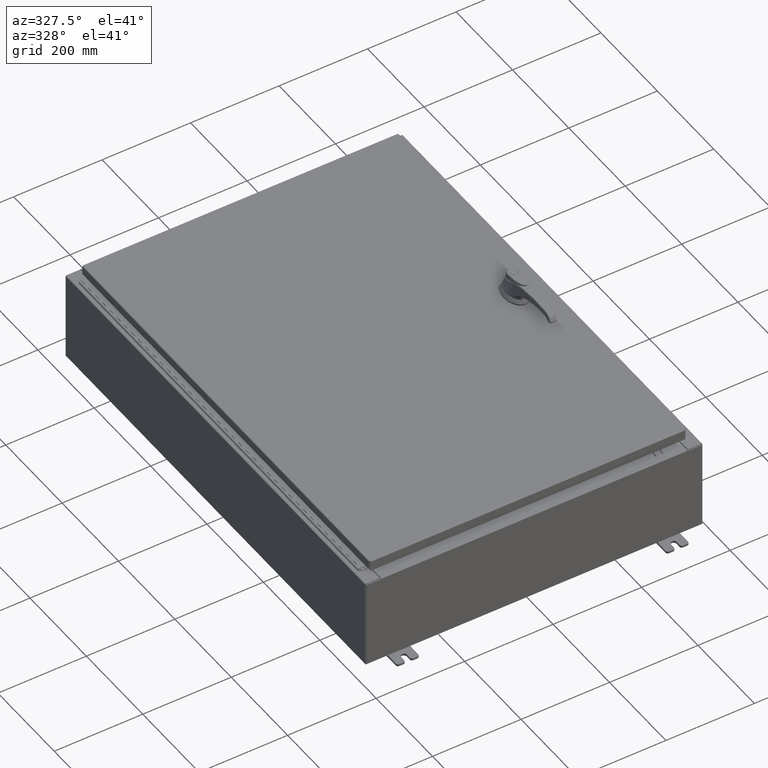
[diagram: clean part render]
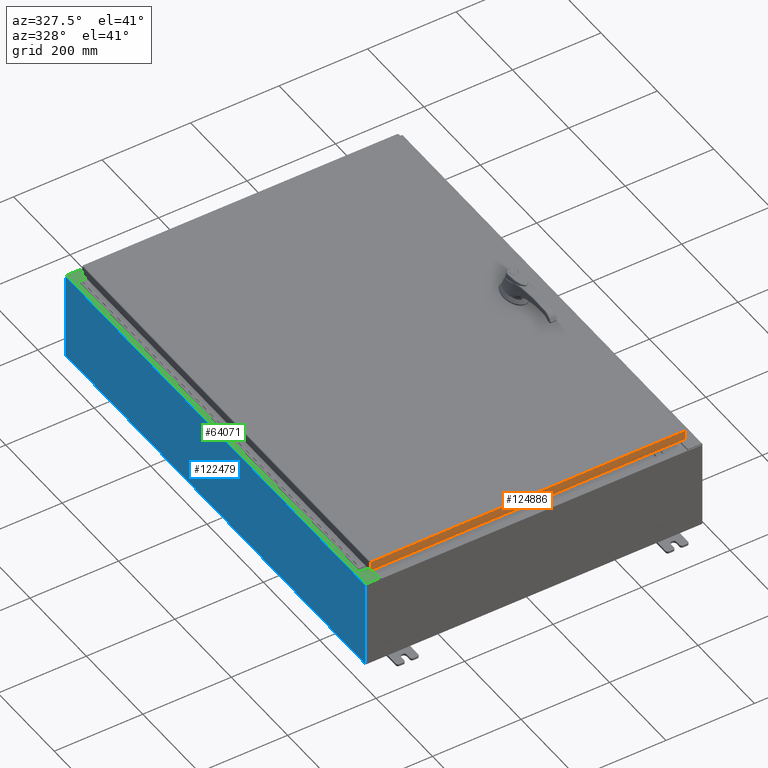
[diagram: same view with three faces highlighted in distinct colors, each labeled with its STEP entity id]
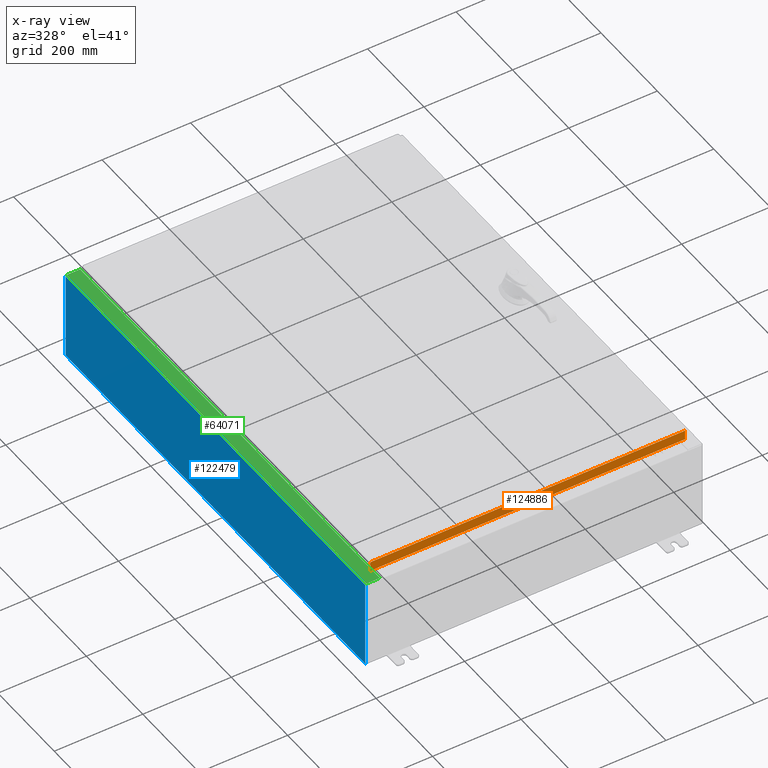
[diagram: x-ray of the same camera — body ghosted, the three highlighted faces saturated]
A machine part, auxiliary view with three faces highlighted in distinct colors.
The next image is the same camera in x-ray (body ghosted, the three faces saturated) — at least one of them is partly hidden behind the body in this view.
Their STEP definitions:

[orange] entity #124886 — the highlighted planar face has unit normal (-0, 1, -0).
#1382 = EDGE_LOOP ( 'NONE', ( #42839, #116784, #117288, #85287 ) ) ;
#2235 = LINE ( 'NONE', #21187, #78443 ) ;
#21187 = CARTESIAN_POINT ( 'NONE',  ( -13.98915786437626500, -20.09400000000000800, 1.020337055859114100E-013 ) ) ;
#28573 = EDGE_CURVE ( 'NONE', #119610, #53768, #33277, .T. ) ;
#30191 = VECTOR ( 'NONE', #128798, 39.37007874015748100 ) ;
#33277 = LINE ( 'NONE', #118860, #30191 ) ;
#34438 = CARTESIAN_POINT ( 'NONE',  ( 1.283692611935426900E-029, -20.09400000000000800, 1.020337055859114100E-013 ) ) ;
#36048 = EDGE_CURVE ( 'NONE', #53768, #95969, #97226, .T. ) ;
#36796 = CARTESIAN_POINT ( 'NONE',  ( -13.98915786437626500, -20.09400000000001200, -0.9376999999999962000 ) ) ;
#42839 = ORIENTED_EDGE ( 'NONE', *, *, #65434, .F. ) ;
#43736 = LINE ( 'NONE', #107799, #93534 ) ;
#44422 = DIRECTION ( 'NONE',  ( 0.0000000000000000000, 5.064839849203732200E-015, 1.000000000000000000 ) ) ;
#47311 = CARTESIAN_POINT ( 'NONE',  ( 13.98915786437627100, -20.09400000000001200, -0.9376999999999997600 ) ) ;
#50501 = DIRECTION ( 'NONE',  ( -1.000000000000000000, -0.0000000000000000000, 1.261330583805775800E-016 ) ) ;
#53517 = PLANE ( 'NONE',  #93148 ) ;
#53768 = VERTEX_POINT ( 'NONE', #47311 ) ;
#54723 = EDGE_CURVE ( 'NONE', #90332, #95969, #2235, .T. ) ;
#65434 = EDGE_CURVE ( 'NONE', #90332, #119610, #43736, .T. ) ;
#70536 = CARTESIAN_POINT ( 'NONE',  ( 14.07800000000000300, -20.09400000000001200, -0.9376999999999997600 ) ) ;
#78443 = VECTOR ( 'NONE', #90725, 39.37007874015748100 ) ;
#85287 = ORIENTED_EDGE ( 'NONE', *, *, #28573, .F. ) ;
#90332 = VERTEX_POINT ( 'NONE', #116921 ) ;
#90725 = DIRECTION ( 'NONE',  ( 0.0000000000000000000, -5.064839849203732200E-015, -1.000000000000000000 ) ) ;
#93148 = AXIS2_PLACEMENT_3D ( 'NONE', #34438, #104022, #44422 ) ;
#93534 = VECTOR ( 'NONE', #117723, 39.37007874015748100 ) ;
#94072 = VECTOR ( 'NONE', #50501, 39.37007874015748100 ) ;
#95969 = VERTEX_POINT ( 'NONE', #36796 ) ;
#97226 = LINE ( 'NONE', #70536, #94072 ) ;
#104022 = DIRECTION ( 'NONE',  ( -6.388437403878901000E-031, 1.000000000000000000, -5.064839849203732200E-015 ) ) ;
#107799 = CARTESIAN_POINT ( 'NONE',  ( 14.07800000000000300, -20.09400000000000800, -0.08769999999999550400 ) ) ;
#111917 = FACE_OUTER_BOUND ( 'NONE', #1382, .T. ) ;
#116784 = ORIENTED_EDGE ( 'NONE', *, *, #54723, .T. ) ;
#116921 = CARTESIAN_POINT ( 'NONE',  ( -13.98915786437626500, -20.09400000000000800, -0.08769999999999550400 ) ) ;
#117288 = ORIENTED_EDGE ( 'NONE', *, *, #36048, .F. ) ;
#117723 = DIRECTION ( 'NONE',  ( 1.000000000000000000, 6.388437403878901800E-031, -3.301709433786010000E-045 ) ) ;
#118266 = CARTESIAN_POINT ( 'NONE',  ( 13.98915786437627400, -20.09400000000000800, -0.08769999999999550400 ) ) ;
#118860 = CARTESIAN_POINT ( 'NONE',  ( 13.98915786437627100, -20.09400000000000800, -0.07469999999999962800 ) ) ;
#119610 = VERTEX_POINT ( 'NONE', #118266 ) ;
#124886 = ADVANCED_FACE ( 'NONE', ( #111917 ), #53517, .F. ) ;
#128798 = DIRECTION ( 'NONE',  ( -0.0000000000000000000, -5.064839849203732200E-015, -1.000000000000000000 ) ) ;

[blue] entity #122479 — the highlighted planar face has unit normal (1, 0, 0).
#1658 = VECTOR ( 'NONE', #14600, 39.37007874015748100 ) ;
#1794 = VERTEX_POINT ( 'NONE', #116780 ) ;
#3663 = EDGE_CURVE ( 'NONE', #75456, #1794, #91618, .T. ) ;
#6051 = DIRECTION ( 'NONE',  ( -0.0000000000000000000, 1.000000000000000000, -0.0000000000000000000 ) ) ;
#7464 = FACE_OUTER_BOUND ( 'NONE', #42356, .T. ) ;
#8203 = ORIENTED_EDGE ( 'NONE', *, *, #120057, .F. ) ;
#14600 = DIRECTION ( 'NONE',  ( -3.584876173029202900E-015, 0.0000000000000000000, 1.000000000000000000 ) ) ;
#21899 = VERTEX_POINT ( 'NONE', #100489 ) ;
#24436 = ORIENTED_EDGE ( 'NONE', *, *, #52814, .T. ) ;
#30195 = DIRECTION ( 'NONE',  ( 0.0000000000000000000, 1.000000000000000000, 0.0000000000000000000 ) ) ;
#34135 = CARTESIAN_POINT ( 'NONE',  ( -14.99999999999999800, 0.0000000000000000000, -5.403395625144962100E-014 ) ) ;
#37339 = LINE ( 'NONE', #125035, #87117 ) ;
#40438 = EDGE_CURVE ( 'NONE', #85388, #75456, #48274, .T. ) ;
#42356 = EDGE_LOOP ( 'NONE', ( #73819, #24436, #8203, #66703 ) ) ;
#44132 = DIRECTION ( 'NONE',  ( 3.584876173029202900E-015, 0.0000000000000000000, -1.000000000000000000 ) ) ;
#44438 = CARTESIAN_POINT ( 'NONE',  ( -15.00000000000002700, -20.92529999999998900, 7.837599999999999200 ) ) ;
#48274 = LINE ( 'NONE', #64083, #1658 ) ;
#52814 = EDGE_CURVE ( 'NONE', #1794, #21899, #70963, .T. ) ;
#54437 = CARTESIAN_POINT ( 'NONE',  ( -15.00000000000002700, -20.92529999999998600, 7.837599999999999200 ) ) ;
#55372 = DIRECTION ( 'NONE',  ( 3.584876173029202900E-015, 0.0000000000000000000, -1.000000000000000000 ) ) ;
#58601 = CARTESIAN_POINT ( 'NONE',  ( -14.99999999999999800, -20.92529999999998600, 0.01299999999999984700 ) ) ;
#64083 = CARTESIAN_POINT ( 'NONE',  ( -14.99999999999999800, -20.92529999999999300, -5.403395625144962100E-014 ) ) ;
#66703 = ORIENTED_EDGE ( 'NONE', *, *, #40438, .T. ) ;
#70963 = LINE ( 'NONE', #114978, #120676 ) ;
#73819 = ORIENTED_EDGE ( 'NONE', *, *, #3663, .T. ) ;
#75456 = VERTEX_POINT ( 'NONE', #54437 ) ;
#85388 = VERTEX_POINT ( 'NONE', #58601 ) ;
#87117 = VECTOR ( 'NONE', #6051, 39.37007874015748100 ) ;
#88030 = AXIS2_PLACEMENT_3D ( 'NONE', #34135, #103727, #44132 ) ;
#91618 = LINE ( 'NONE', #44438, #111794 ) ;
#93727 = PLANE ( 'NONE',  #88030 ) ;
#100489 = CARTESIAN_POINT ( 'NONE',  ( -14.99999999999999800, 20.92530000000000700, 0.01299999999999983600 ) ) ;
#103727 = DIRECTION ( 'NONE',  ( 1.000000000000000000, 0.0000000000000000000, 3.584876173029202900E-015 ) ) ;
#111794 = VECTOR ( 'NONE', #30195, 39.37007874015748100 ) ;
#114978 = CARTESIAN_POINT ( 'NONE',  ( -14.99999999999999800, 20.92530000000000700, -5.403395625144962100E-014 ) ) ;
#116780 = CARTESIAN_POINT ( 'NONE',  ( -15.00000000000002700, 20.92530000000000700, 7.837599999999999200 ) ) ;
#120057 = EDGE_CURVE ( 'NONE', #85388, #21899, #37339, .T. ) ;
#120676 = VECTOR ( 'NONE', #55372, 39.37007874015748100 ) ;
#122479 = ADVANCED_FACE ( 'NONE', ( #7464 ), #93727, .F. ) ;
#125035 = CARTESIAN_POINT ( 'NONE',  ( -14.99999999999999800, 20.92530000000000700, 0.01299999999999984700 ) ) ;

[green] entity #64071 — the highlighted planar face has unit normal (0, 0, -1).
#1828 = VECTOR ( 'NONE', #63168, 39.37007874015748100 ) ;
#1988 = FACE_OUTER_BOUND ( 'NONE', #17120, .T. ) ;
#4632 = LINE ( 'NONE', #53541, #27993 ) ;
#4751 = EDGE_CURVE ( 'NONE', #117487, #17354, #16777, .T. ) ;
#5332 = LINE ( 'NONE', #37284, #84642 ) ;
#5456 = VECTOR ( 'NONE', #92288, 39.37007874015748100 ) ;
#7649 = VECTOR ( 'NONE', #75482, 39.37007874015748100 ) ;
#10365 = CARTESIAN_POINT ( 'NONE',  ( -13.75005000000002700, -19.59374999999998200, 7.925300000000007100 ) ) ;
#11464 = ORIENTED_EDGE ( 'NONE', *, *, #33781, .F. ) ;
#11725 = EDGE_CURVE ( 'NONE', #18247, #89728, #39349, .T. ) ;
#12096 = VECTOR ( 'NONE', #71170, 39.37007874015748100 ) ;
#12140 = ORIENTED_EDGE ( 'NONE', *, *, #104926, .F. ) ;
#12401 = EDGE_CURVE ( 'NONE', #27461, #85206, #48554, .T. ) ;
#15748 = CARTESIAN_POINT ( 'NONE',  ( -13.69970000000002800, 0.0000000000000000000, 7.925300000000008900 ) ) ;
#16425 = CARTESIAN_POINT ( 'NONE',  ( -13.71270000000002800, 19.59375000000000400, 7.925300000000010700 ) ) ;
#16777 = CIRCLE ( 'NONE', #124332, 0.01867499999999949400 ) ;
#17120 = EDGE_LOOP ( 'NONE', ( #104253, #121613, #42568, #23168, #21576, #85484, #12140, #20189, #11464, #50535, #94995, #59803 ) ) ;
#17354 = VERTEX_POINT ( 'NONE', #118934 ) ;
#18247 = VERTEX_POINT ( 'NONE', #64784 ) ;
#19678 = VERTEX_POINT ( 'NONE', #91583 ) ;
#20189 = ORIENTED_EDGE ( 'NONE', *, *, #4751, .F. ) ;
#21576 = ORIENTED_EDGE ( 'NONE', *, *, #41215, .T. ) ;
#22196 = CARTESIAN_POINT ( 'NONE',  ( -13.75005000000002700, 19.59375000000000400, 7.925300000000010700 ) ) ;
#22836 = CARTESIAN_POINT ( 'NONE',  ( -5.679009539018309800E-014, 20.92530000000000700, 7.925300000000105700 ) ) ;
#23168 = ORIENTED_EDGE ( 'NONE', *, *, #59338, .F. ) ;
#23988 = VERTEX_POINT ( 'NONE', #125106 ) ;
#25112 = DIRECTION ( 'NONE',  ( -1.000000000000000000, 0.0000000000000000000, -7.132762385546384700E-015 ) ) ;
#25721 = DIRECTION ( 'NONE',  ( 0.0000000000000000000, 1.000000000000000000, 0.0000000000000000000 ) ) ;
#27461 = VERTEX_POINT ( 'NONE', #53164 ) ;
#27993 = VECTOR ( 'NONE', #63558, 39.37007874015748100 ) ;
#28536 = DIRECTION ( 'NONE',  ( -7.132762385546384700E-015, -0.0000000000000000000, 1.000000000000000000 ) ) ;
#32679 = VECTOR ( 'NONE', #110034, 39.37007874015748100 ) ;
#33781 = EDGE_CURVE ( 'NONE', #68276, #117487, #85581, .T. ) ;
#34990 = LINE ( 'NONE', #122200, #5456 ) ;
#36189 = VECTOR ( 'NONE', #25721, 39.37007874015748100 ) ;
#36853 = DIRECTION ( 'NONE',  ( 0.0000000000000000000, 1.000000000000000000, 0.0000000000000000000 ) ) ;
#37284 = CARTESIAN_POINT ( 'NONE',  ( -13.69970000000002800, 19.63110000000000400, 7.925300000000009800 ) ) ;
#38489 = LINE ( 'NONE', #90753, #12096 ) ;
#38849 = CARTESIAN_POINT ( 'NONE',  ( -13.69970000000002800, 20.92530000000000700, 7.925300000000008900 ) ) ;
#39349 = LINE ( 'NONE', #15748, #36189 ) ;
#40296 = LINE ( 'NONE', #105529, #7649 ) ;
#41215 = EDGE_CURVE ( 'NONE', #52901, #27461, #4632, .T. ) ;
#41629 = CARTESIAN_POINT ( 'NONE',  ( -14.91230000000002700, 20.92530000000000700, 7.925300000000000000 ) ) ;
#42568 = ORIENTED_EDGE ( 'NONE', *, *, #69652, .T. ) ;
#44620 = VERTEX_POINT ( 'NONE', #41629 ) ;
#48554 = LINE ( 'NONE', #125891, #98408 ) ;
#50429 = CARTESIAN_POINT ( 'NONE',  ( -13.71270000000002800, -19.59374999999998200, 7.925300000000010700 ) ) ;
#50535 = ORIENTED_EDGE ( 'NONE', *, *, #112649, .F. ) ;
#52901 = VERTEX_POINT ( 'NONE', #76289 ) ;
#53164 = CARTESIAN_POINT ( 'NONE',  ( -13.69970000000002800, -20.92529999999998600, 7.925300000000008900 ) ) ;
#53541 = CARTESIAN_POINT ( 'NONE',  ( -1.314176917633201200E-013, -20.92530000000003600, 7.925300000000105700 ) ) ;
#53572 = EDGE_CURVE ( 'NONE', #23988, #127533, #100488, .T. ) ;
#56021 = CARTESIAN_POINT ( 'NONE',  ( -13.69970000000002800, -19.63109999999998600, 7.925300000000008900 ) ) ;
#57774 = LINE ( 'NONE', #22836, #1828 ) ;
#59338 = EDGE_CURVE ( 'NONE', #52901, #44620, #38489, .T. ) ;
#59803 = ORIENTED_EDGE ( 'NONE', *, *, #68108, .F. ) ;
#63168 = DIRECTION ( 'NONE',  ( -1.000000000000000000, 0.0000000000000000000, -7.132762385546384700E-015 ) ) ;
#63558 = DIRECTION ( 'NONE',  ( 1.000000000000000000, -3.566381192773192400E-015, 7.132762385546384700E-015 ) ) ;
#64071 = ADVANCED_FACE ( 'NONE', ( #1988 ), #124100, .F. ) ;
#64784 = CARTESIAN_POINT ( 'NONE',  ( -13.69970000000002800, 19.63110000000000400, 7.925300000000008900 ) ) ;
#68108 = EDGE_CURVE ( 'NONE', #19678, #23988, #94941, .T. ) ;
#68276 = VERTEX_POINT ( 'NONE', #109797 ) ;
#69652 = EDGE_CURVE ( 'NONE', #89728, #44620, #57774, .T. ) ;
#70859 = VECTOR ( 'NONE', #81714, 39.37007874015748100 ) ;
#71170 = DIRECTION ( 'NONE',  ( -0.0000000000000000000, 1.000000000000000000, -0.0000000000000000000 ) ) ;
#74624 = CARTESIAN_POINT ( 'NONE',  ( -5.679009539018309800E-014, 0.0000000000000000000, 7.925300000000105700 ) ) ;
#75482 = DIRECTION ( 'NONE',  ( -0.0000000000000000000, -1.000000000000000000, -0.0000000000000000000 ) ) ;
#76289 = CARTESIAN_POINT ( 'NONE',  ( -14.91230000000002700, -20.92529999999998600, 7.925300000000000000 ) ) ;
#81714 = DIRECTION ( 'NONE',  ( 1.000000000000000000, 0.0000000000000000000, 0.0000000000000000000 ) ) ;
#84630 = DIRECTION ( 'NONE',  ( 7.132762385546384700E-015, 0.0000000000000000000, -1.000000000000000000 ) ) ;
#84642 = VECTOR ( 'NONE', #106869, 39.37007874015748100 ) ;
#85206 = VERTEX_POINT ( 'NONE', #56021 ) ;
#85484 = ORIENTED_EDGE ( 'NONE', *, *, #12401, .T. ) ;
#85581 = LINE ( 'NONE', #50429, #32679 ) ;
#86912 = AXIS2_PLACEMENT_3D ( 'NONE', #74624, #84630, #25112 ) ;
#88066 = CARTESIAN_POINT ( 'NONE',  ( -13.75005000000002700, 19.61242500000000200, 7.925300000000010700 ) ) ;
#89728 = VERTEX_POINT ( 'NONE', #38849 ) ;
#90753 = CARTESIAN_POINT ( 'NONE',  ( -14.91230000000002700, 20.92530000000000700, 7.925300000000000000 ) ) ;
#91583 = CARTESIAN_POINT ( 'NONE',  ( -13.75005000000002700, 19.63110000000000400, 7.925300000000007100 ) ) ;
#92288 = DIRECTION ( 'NONE',  ( 1.000000000000000000, 0.0000000000000000000, -2.170286390200049500E-014 ) ) ;
#92740 = DIRECTION ( 'NONE',  ( -7.132762385546384700E-015, -0.0000000000000000000, 1.000000000000000000 ) ) ;
#94941 = CIRCLE ( 'NONE', #123803, 0.01867499999999949400 ) ;
#94995 = ORIENTED_EDGE ( 'NONE', *, *, #53572, .F. ) ;
#98114 = DIRECTION ( 'NONE',  ( 1.000000000000000000, 0.0000000000000000000, 0.0000000000000000000 ) ) ;
#98408 = VECTOR ( 'NONE', #36853, 39.37007874015748100 ) ;
#100488 = LINE ( 'NONE', #22196, #70859 ) ;
#104253 = ORIENTED_EDGE ( 'NONE', *, *, #105762, .F. ) ;
#104926 = EDGE_CURVE ( 'NONE', #17354, #85206, #34990, .T. ) ;
#105529 = CARTESIAN_POINT ( 'NONE',  ( -13.71270000000002800, 19.59375000000000700, 7.925300000000010700 ) ) ;
#105762 = EDGE_CURVE ( 'NONE', #18247, #19678, #5332, .T. ) ;
#106869 = DIRECTION ( 'NONE',  ( -1.000000000000000000, 0.0000000000000000000, 2.170286390200049500E-014 ) ) ;
#109797 = CARTESIAN_POINT ( 'NONE',  ( -13.71270000000002800, -19.59374999999998200, 7.925300000000010700 ) ) ;
#110034 = DIRECTION ( 'NONE',  ( -1.000000000000000000, 0.0000000000000000000, 0.0000000000000000000 ) ) ;
#112649 = EDGE_CURVE ( 'NONE', #127533, #68276, #40296, .T. ) ;
#114297 = CARTESIAN_POINT ( 'NONE',  ( -13.75005000000002700, -19.61242499999998400, 7.925300000000010700 ) ) ;
#117487 = VERTEX_POINT ( 'NONE', #10365 ) ;
#118934 = CARTESIAN_POINT ( 'NONE',  ( -13.75005000000002700, -19.63109999999998200, 7.925300000000007100 ) ) ;
#121613 = ORIENTED_EDGE ( 'NONE', *, *, #11725, .T. ) ;
#122200 = CARTESIAN_POINT ( 'NONE',  ( -13.75005000000002700, -19.63109999999998200, 7.925300000000010700 ) ) ;
#123803 = AXIS2_PLACEMENT_3D ( 'NONE', #88066, #28536, #98114 ) ;
#124100 = PLANE ( 'NONE',  #86912 ) ;
#124332 = AXIS2_PLACEMENT_3D ( 'NONE', #114297, #92740, #128349 ) ;
#125106 = CARTESIAN_POINT ( 'NONE',  ( -13.75005000000002700, 19.59375000000000400, 7.925300000000007100 ) ) ;
#125891 = CARTESIAN_POINT ( 'NONE',  ( -13.69970000000002800, 0.0000000000000000000, 7.925300000000008900 ) ) ;
#127533 = VERTEX_POINT ( 'NONE', #16425 ) ;
#128349 = DIRECTION ( 'NONE',  ( 1.000000000000000000, 0.0000000000000000000, 0.0000000000000000000 ) ) ;